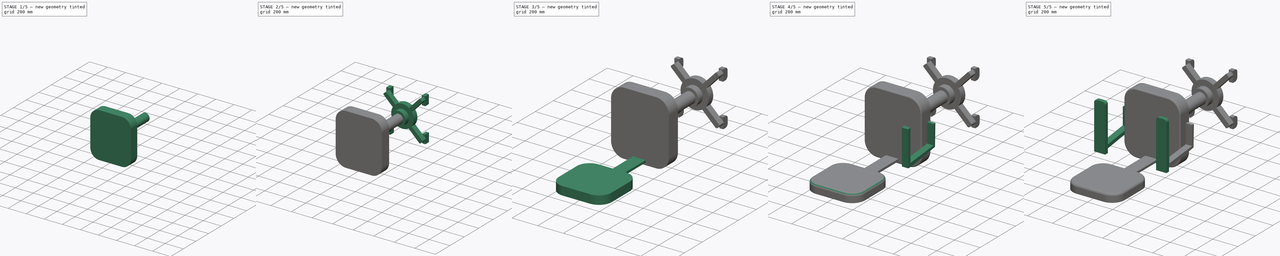
[diagram: build sequence overview — one tinted view per stage of 5, left to right]
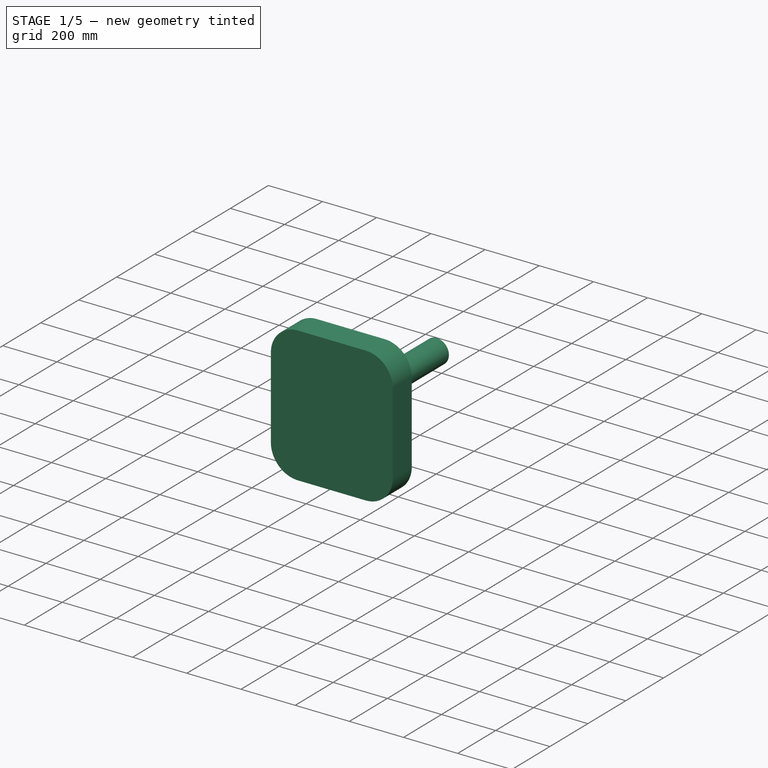
[diagram: stage 1 of 5 — iso view after this stage's code; geometry added in this stage tinted green]
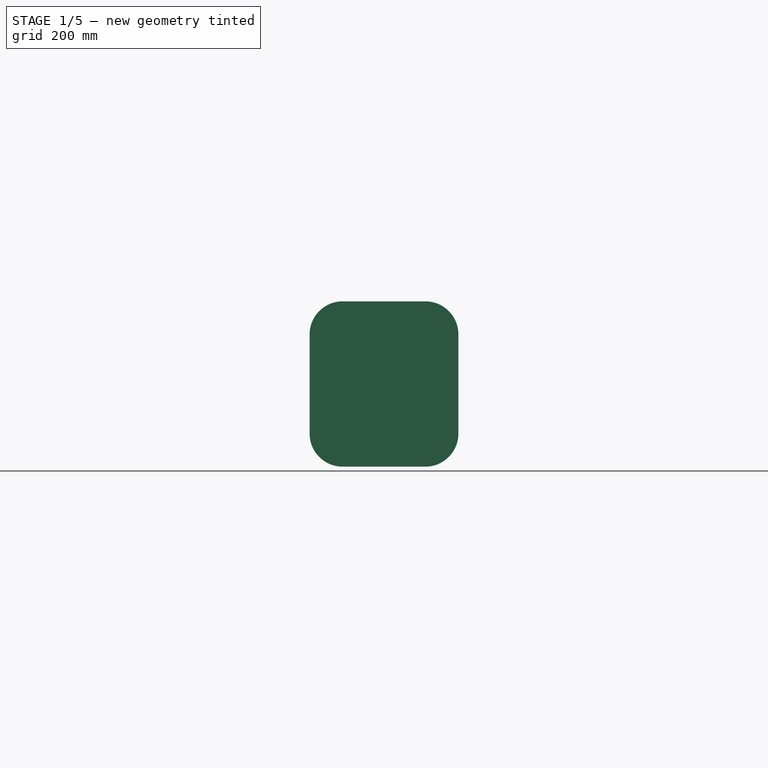
[diagram: stage 1 of 5 — front view after this stage's code; geometry added in this stage tinted green]
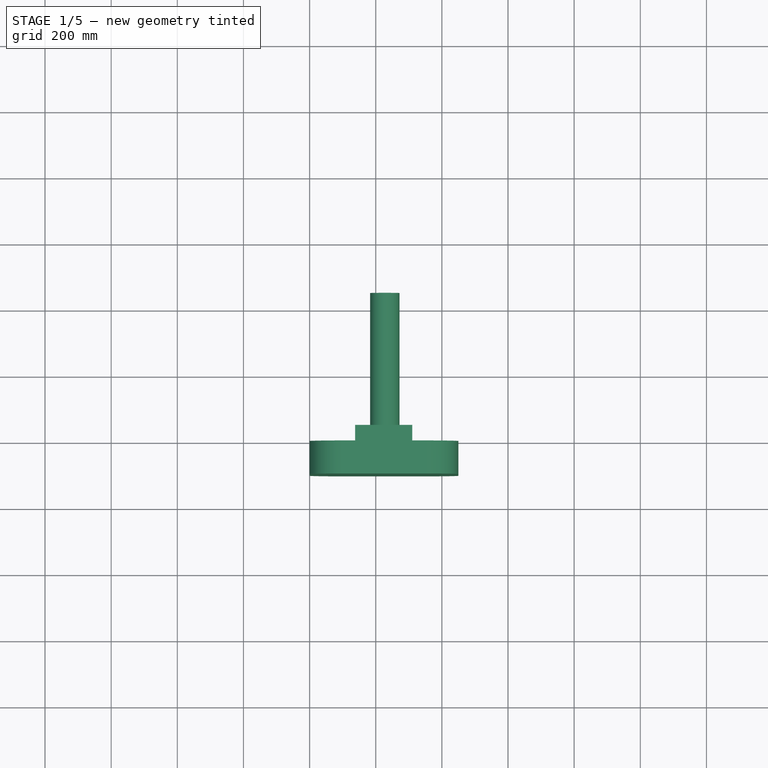
[diagram: stage 1 of 5 — top view after this stage's code; geometry added in this stage tinted green]
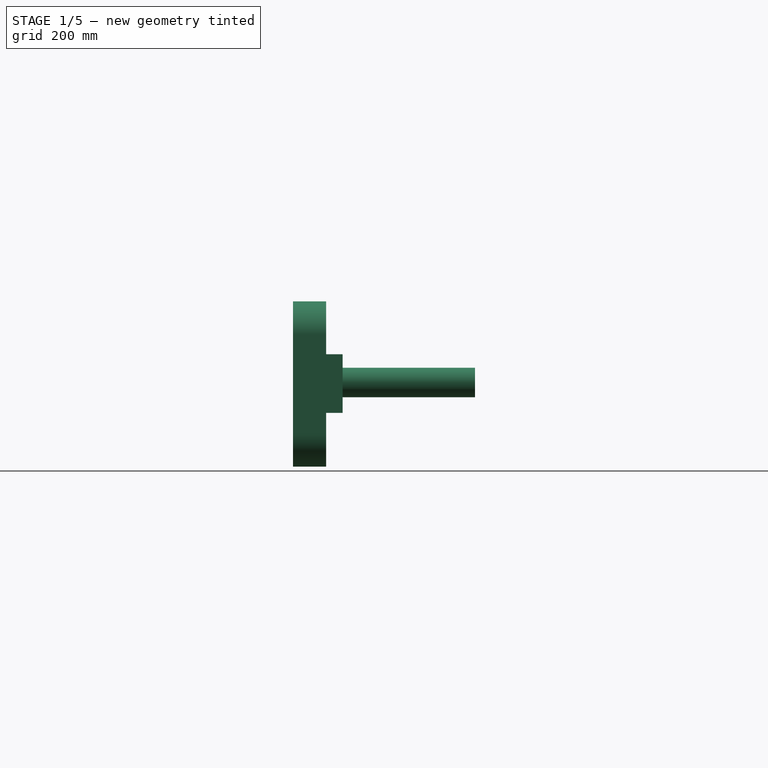
[diagram: stage 1 of 5 — right view after this stage's code; geometry added in this stage tinted green]
FCSTD DOCUMENT  (FreeCAD 1.0R39319 (Git))
Label: office-chair
License: All rights reserved
LicenseURL: https://en.wikipedia.org/wiki/All_rights_reserved
objects: Sketcher::SketchObject×12, PartDesign::Pad×12, PartDesign::Fillet×6, PartDesign::Body×1
note: 79 computed .brp shape members not serialized (recipe doc carries the construction recipe); baked Part::Feature solids carry a one-line shape summary decoded from their .brp

FEATURE [Sketcher::SketchObject] Sketch
  ArcFitTolerance = 1e-06
  AttachmentSupport = -> [XZ_Plane]
  FullyConstrained = true
  MakeInternals = false
  MapMode = 5
  Placement = pos=(0,0,0) rot=(1,0,0;1.5708rad)
  sketch-geometry (4):
    g0: LineSegment StartX=0 StartY=0 StartZ=0 EndX=450 EndY=0 EndZ=0
    g1: LineSegment StartX=450 StartY=0 StartZ=0 EndX=450 EndY=500 EndZ=0
    g2: LineSegment StartX=450 StartY=500 StartZ=0 EndX=0 EndY=500 EndZ=0
    g3: LineSegment StartX=0 StartY=500 StartZ=0 EndX=0 EndY=0 EndZ=0
  constraints (11):
    c: Coincident(g0,g1)
    c: Coincident(g1,g2)
    c: Coincident(g2,g3)
    c: Coincident(g3,g0)
    c: Horizontal(g0)
    c: Horizontal(g2)
    c: Vertical(g1)
    c: Vertical(g3)
    c: Distance(g1,g3) = 450
    c: Distance(g0,g2) = 500
    c: Coincident(g0,g-1)
FEATURE [PartDesign::Pad] Pad
  Direction = (0,-1,2e-16)
  Length = 100
  Length2 = 10
  Placement = pos=(0,0,0) rot=(1,0,0;1.5708rad)
  Profile = -> Sketch
  ReferenceAxis = -> Sketch [N_Axis]
  Refine = true
  Suppressed = false
  Type = 0
FEATURE [PartDesign::Fillet] Fillet
  Base = -> Pad [Edge8,Edge1,Edge2,Edge5]
  BaseFeature = -> Pad
  Placement = pos=(0,0,0) rot=(1,0,0;1.5708rad)
  Radius = 100
  Refine = true
  SupportTransform = false
  Suppressed = false
  UseAllEdges = false
FEATURE [Sketcher::SketchObject] Sketch001
  ArcFitTolerance = 1e-06
  AttachmentSupport = -> [Fillet]
  FullyConstrained = false
  MakeInternals = false
  MapMode = 5
  Placement = pos=(0,5.55e-14,0) rot=(-1,0,0;1.5708rad)
  sketch-geometry (4):
    g0: LineSegment StartX=137.68 StartY=-162.539 StartZ=0 EndX=137.68 EndY=-339.873 EndZ=0
    g1: LineSegment StartX=137.68 StartY=-339.873 StartZ=0 EndX=310.525 EndY=-339.873 EndZ=0
    g2: LineSegment StartX=310.525 StartY=-339.873 StartZ=0 EndX=310.525 EndY=-162.539 EndZ=0
    g3: LineSegment StartX=310.525 StartY=-162.539 StartZ=0 EndX=137.68 EndY=-162.539 EndZ=0
  constraints (8):
    c: Coincident(g0,g1)
    c: Coincident(g1,g2)
    c: Coincident(g2,g3)
    c: Coincident(g3,g0)
    c: Vertical(g0)
    c: Vertical(g2)
    c: Horizontal(g1)
    c: Horizontal(g3)
FEATURE [PartDesign::Pad] Pad001
  BaseFeature = -> Fillet
  Direction = (0,1,2e-16)
  Length = 50
  Length2 = 10
  Placement = pos=(0,0,0) rot=(1,0,0;1.5708rad)
  Profile = -> Sketch001
  ReferenceAxis = -> Sketch001 [N_Axis]
  Refine = true
  Suppressed = false
  Type = 0
FEATURE [Sketcher::SketchObject] Sketch002
  ArcFitTolerance = 1e-06
  AttachmentSupport = -> [Pad001]
  FullyConstrained = false
  MakeInternals = false
  MapMode = 5
  Placement = pos=(0,50,0) rot=(-1,0,0;1.5708rad)
  sketch-geometry (1):
    g0: Circle CenterX=227.47 CenterY=-254.573 CenterZ=0 NormalX=0 NormalY=0 NormalZ=1 AngleXU=0 Radius=44.5567
FEATURE [PartDesign::Pad] Pad002
  BaseFeature = -> Pad001
  Direction = (0,1,2e-16)
  Length = 400
  Length2 = 10
  Placement = pos=(0,0,0) rot=(1,0,0;1.5708rad)
  Profile = -> Sketch002
  ReferenceAxis = -> Sketch002 [N_Axis]
  Refine = true
  Suppressed = false
  Type = 0
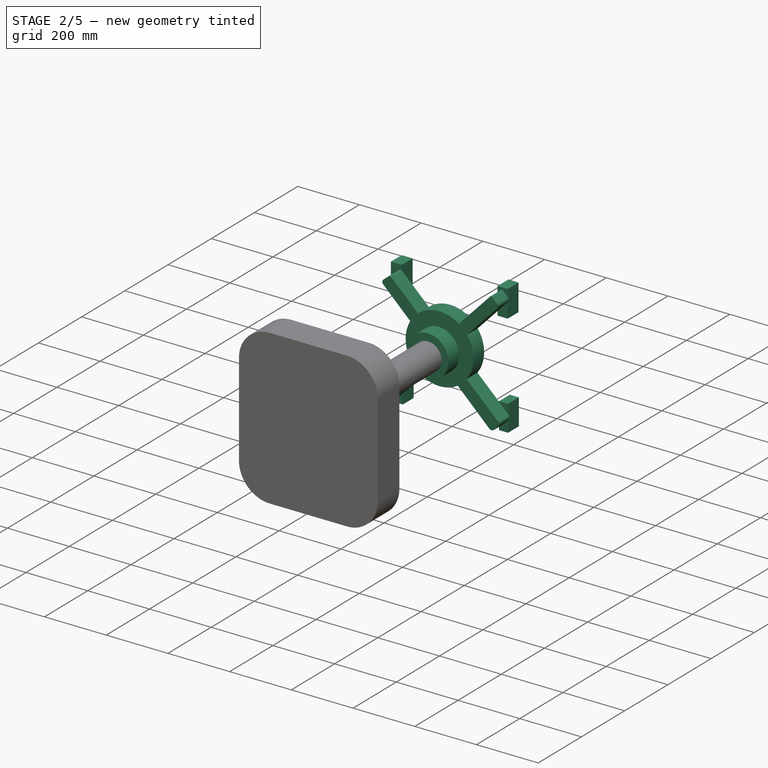
[diagram: stage 2 of 5 — iso view after this stage's code; geometry added in this stage tinted green]
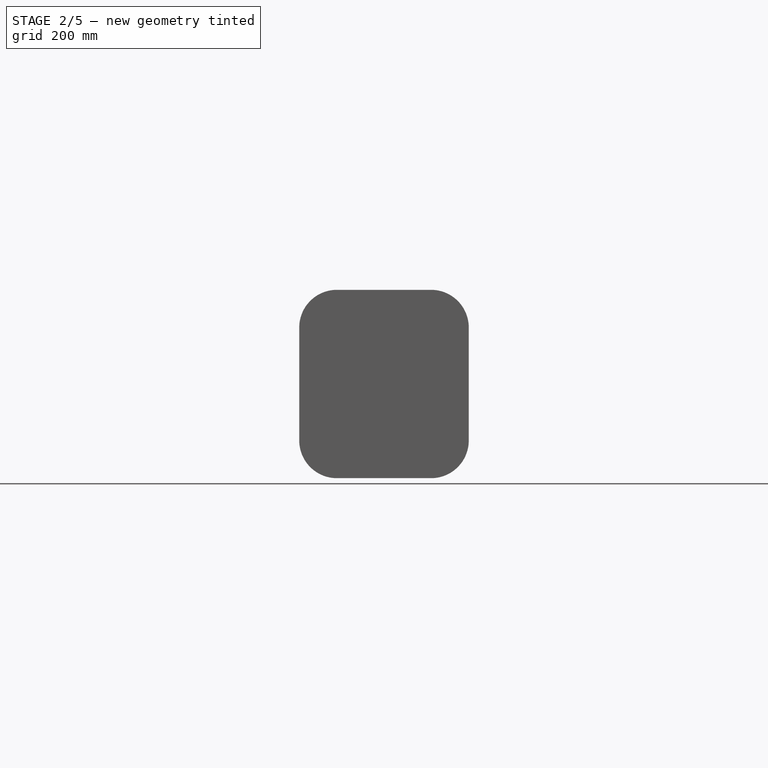
[diagram: stage 2 of 5 — front view after this stage's code; geometry added in this stage tinted green]
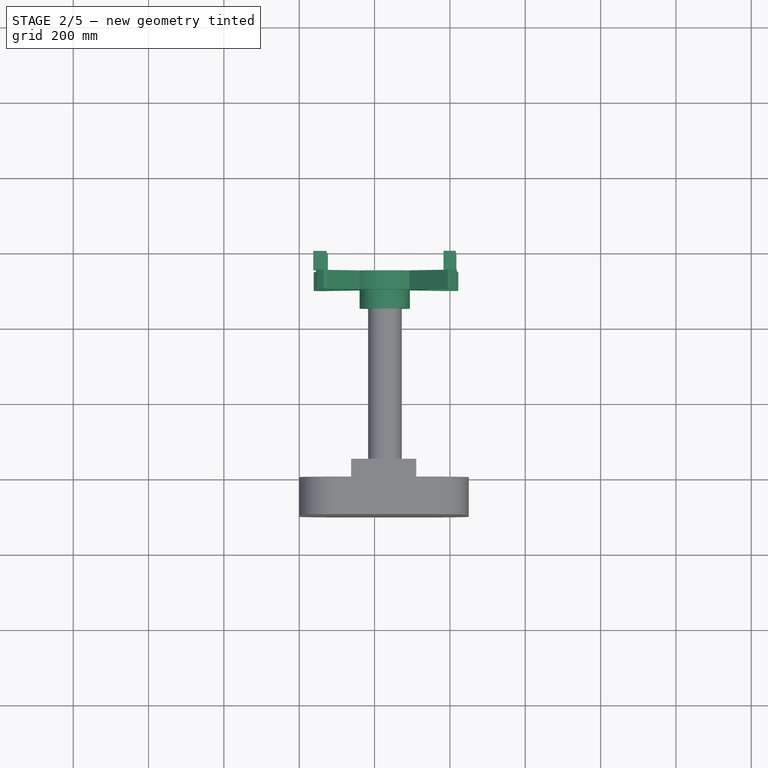
[diagram: stage 2 of 5 — top view after this stage's code; geometry added in this stage tinted green]
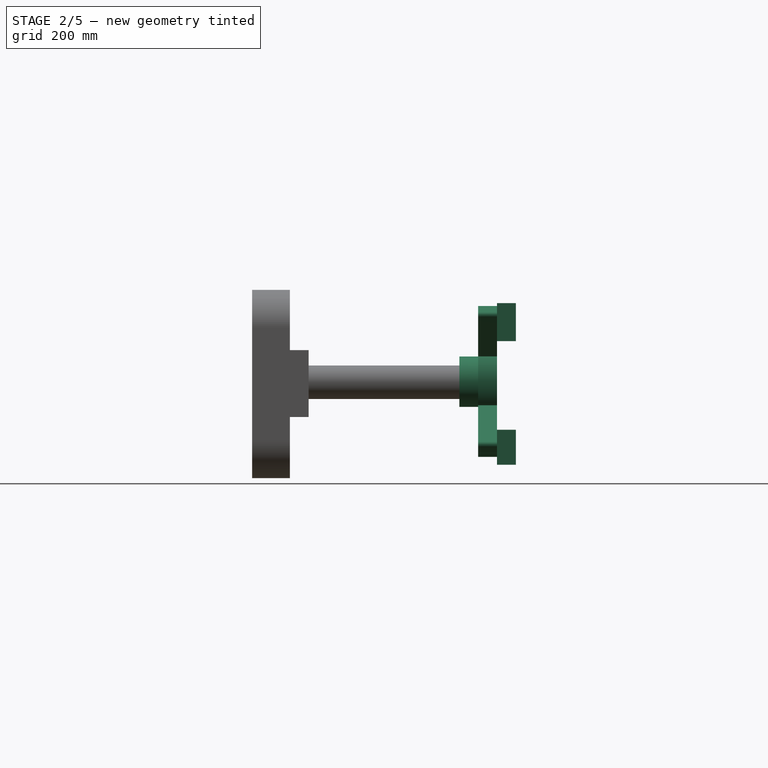
[diagram: stage 2 of 5 — right view after this stage's code; geometry added in this stage tinted green]
FEATURE [Sketcher::SketchObject] Sketch003
  ArcFitTolerance = 1e-06
  AttachmentSupport = -> [Pad002]
  FullyConstrained = false
  MakeInternals = false
  MapMode = 5
  Placement = pos=(0,450,0) rot=(-1,0,0;1.5708rad)
  sketch-geometry (1):
    g0: Circle CenterX=227.002 CenterY=-256.114 CenterZ=0 NormalX=0 NormalY=0 NormalZ=1 AngleXU=0 Radius=66.7408
FEATURE [PartDesign::Pad] Pad003
  BaseFeature = -> Pad002
  Direction = (0,1,2e-16)
  Length = 50
  Length2 = 10
  Placement = pos=(0,0,0) rot=(1,0,0;1.5708rad)
  Profile = -> Sketch003
  ReferenceAxis = -> Sketch003 [N_Axis]
  Refine = true
  Suppressed = false
  Type = 0
FEATURE [Sketcher::SketchObject] Sketch004
  ArcFitTolerance = 1e-06
  AttachmentSupport = -> [Pad003]
  FullyConstrained = false
  MakeInternals = false
  MapMode = 5
  Placement = pos=(0,500,0) rot=(-1,0,0;1.5708rad)
  sketch-geometry (36):
    g0: Circle CenterX=229.716 CenterY=-259.063 CenterZ=0 NormalX=0 NormalY=0 NormalZ=1 AngleXU=0 Radius=109.625
    g1: LineSegment StartX=41.4279 StartY=-84.1603 StartZ=0 EndX=181.537 EndY=-231.918 EndZ=0
    g2: LineSegment StartX=400.729 StartY=-455.528 StartZ=0 EndX=415.713 EndY=-441.061 EndZ=0
    g3: LineSegment StartX=416.04 StartY=-426.286 StartZ=0 EndX=267.975 EndY=-270.056 EndZ=0
    g4: LineSegment StartX=55.9414 StartY=-58.3666 StartZ=0 EndX=42.9376 EndY=-67.8054 EndZ=0
    g5: LineSegment StartX=47.1419 StartY=-399.036 StartZ=0 EndX=180.652 EndY=-270.571 EndZ=0
    g6: LineSegment StartX=47.4551 StartY=-412.273 StartZ=0 EndX=62.9285 EndY=-425.813 EndZ=0
    g7: LineSegment StartX=74.8355 StartY=-425.555 StartZ=0 EndX=209.494 EndY=-297.017 EndZ=0
    g8: LineSegment StartX=419.078 StartY=-81.5976 StartZ=0 EndX=406.837 EndY=-68.9623 EndZ=0
    g9: LineSegment StartX=244.832 StartY=-209.478 StartZ=0 EndX=390.558 EndY=-68.6927 EndZ=0
    g10: LineSegment StartX=244.083 StartY=-297.879 StartZ=0 EndX=393.419 EndY=-455.367 EndZ=0
    g11: LineSegment StartX=268.715 StartY=-240.488 StartZ=0 EndX=418.772 EndY=-97.252 EndZ=0
    g12: LineSegment StartX=212.371 StartY=-208.91 StartZ=0 EndX=68.1099 EndY=-59.4358 EndZ=0
    g13: ArcOfCircle CenterX=228.885 CenterY=-192.971 CenterZ=0 NormalX=0 NormalY=0 NormalZ=1 AngleXU=0 Radius=22.9511 StartAngle=3.90925 EndAngle=5.48054
    g14: ArcOfCircle CenterX=161.626 CenterY=-250.799 CenterZ=0 NormalX=0 NormalY=0 NormalZ=1 AngleXU=0 Radius=27.4391 StartAngle=5.47853 EndAngle=7.04202
    g15: GeomPoint [constr] X=200.28 Y=-251.684 Z=0
    g16: ArcOfCircle CenterX=226.359 CenterY=-314.686 CenterZ=0 NormalX=0 NormalY=0 NormalZ=1 AngleXU=0 Radius=24.4257 StartAngle=0.758834 EndAngle=2.33294
    g17: GeomPoint [constr] X=227.221 Y=-280.096 Z=0
    g18: ArcOfCircle CenterX=283.183 CenterY=-255.644 CenterZ=0 NormalX=0 NormalY=0 NormalZ=1 AngleXU=0 Radius=20.9524 StartAngle=2.33294 EndAngle=3.90017
    g19: GeomPoint [constr] X=253.614 Y=-254.903 Z=0
    g20: ArcOfCircle CenterX=49.3537 CenterY=-76.6448 CenterZ=0 NormalX=0 NormalY=0 NormalZ=1 AngleXU=0 Radius=10.9225 StartAngle=2.19866 EndAngle=3.90043
    g21: GeomPoint [constr] X=32.8575 Y=-75.122 Z=0
    g22: ArcOfCircle CenterX=61.4106 CenterY=-65.9015 CenterZ=0 NormalX=0 NormalY=0 NormalZ=1 AngleXU=0 Radius=9.31055 StartAngle=0.767653 EndAngle=2.19866
    g23: GeomPoint [constr] X=62.4903 Y=-53.6131 Z=0
    g24: ArcOfCircle CenterX=398.563 CenterY=-76.9785 CenterZ=0 NormalX=0 NormalY=0 NormalZ=1 AngleXU=0 Radius=11.5209 StartAngle=0.769531 EndAngle=2.33895
    g25: GeomPoint [constr] X=398.832 Y=-60.6989 Z=0
    g26: ArcOfCircle CenterX=411.155 CenterY=-89.2728 CenterZ=0 NormalX=0 NormalY=0 NormalZ=1 AngleXU=0 Radius=11.0308 StartAngle=5.47454 EndAngle=7.05272
    g27: GeomPoint [constr] X=426.81 Y=-89.579 Z=0
    g28: ArcOfCircle CenterX=397.154 CenterY=-451.825 CenterZ=0 NormalX=0 NormalY=0 NormalZ=1 AngleXU=0 Radius=5.14718 StartAngle=3.90043 EndAngle=5.48025
    g29: GeomPoint [constr] X=396.993 Y=-459.136 Z=0
    g30: ArcOfCircle CenterX=408.42 CenterY=-433.508 CenterZ=0 NormalX=0 NormalY=0 NormalZ=1 AngleXU=0 Radius=10.4991 StartAngle=5.48025 EndAngle=7.04176
    g31: GeomPoint [constr] X=423.196 Y=-433.836 Z=0
    g32: ArcOfCircle CenterX=53.3722 CenterY=-405.511 CenterZ=0 NormalX=0 NormalY=0 NormalZ=1 AngleXU=0 Radius=8.98563 StartAngle=2.33694 EndAngle=3.99356
    g33: GeomPoint [constr] X=40.0859 Y=-405.825 Z=0
    g34: ArcOfCircle CenterX=68.7409 CenterY=-419.17 CenterZ=0 NormalX=0 NormalY=0 NormalZ=1 AngleXU=0 Radius=8.82667 StartAngle=3.99356 EndAngle=5.47454
    g35: GeomPoint [constr] X=68.9999 Y=-431.125 Z=0
  constraints (46):
    c: Tangent(g12,g13) = 1.5708
    c: Tangent(g9,g13) = -1.5708
    c: PointOnObject(g15,g1)
    c: PointOnObject(g15,g5)
    c: Tangent(g1,g14) = 1.5708
    c: Tangent(g5,g14) = -1.5708
    c: PointOnObject(g17,g7)
    c: PointOnObject(g17,g10)
    c: Tangent(g7,g16) = 1.5708
    c: Tangent(g10,g16) = 1.5708
    c: PointOnObject(g19,g3)
    c: PointOnObject(g19,g11)
    c: Tangent(g3,g18) = 1.5708
    c: Tangent(g11,g18) = 1.5708
    c: PointOnObject(g21,g4)
    c: PointOnObject(g21,g1)
    c: Tangent(g4,g20) = -1.5708
    c: Tangent(g1,g20) = -1.5708
    c: PointOnObject(g23,g4)
    c: PointOnObject(g23,g12)
    c: Tangent(g4,g22) = -1.5708
    c: Tangent(g12,g22) = -1.5708
    c: PointOnObject(g25,g9)
    c: PointOnObject(g25,g8)
    c: Tangent(g9,g24) = 1.5708
    c: Tangent(g8,g24) = -1.5708
    c: PointOnObject(g27,g8)
    c: PointOnObject(g27,g11)
    c: Tangent(g8,g26) = -1.5708
    c: Tangent(g11,g26) = -1.5708
    c: PointOnObject(g29,g2)
    c: PointOnObject(g29,g10)
    c: Tangent(g2,g28) = -1.5708
    c: Tangent(g10,g28) = -1.5708
    c: PointOnObject(g31,g2)
    c: PointOnObject(g31,g3)
    c: Tangent(g2,g30) = -1.5708
    c: Tangent(g3,g30) = -1.5708
    c: PointOnObject(g33,g6)
    c: PointOnObject(g33,g5)
    c: Tangent(g6,g32) = -1.5708
    c: Tangent(g5,g32) = 1.5708
    c: PointOnObject(g35,g6)
    c: PointOnObject(g35,g7)
    c: Tangent(g6,g34) = -1.5708
    c: Tangent(g7,g34) = -1.5708
FEATURE [PartDesign::Pad] Pad004
  BaseFeature = -> Pad003
  Direction = (0,1,2e-16)
  Length = 50
  Length2 = 10
  Placement = pos=(0,0,0) rot=(1,0,0;1.5708rad)
  Profile = -> Sketch004
  ReferenceAxis = -> Sketch004 [N_Axis]
  Refine = true
  Suppressed = false
  Type = 0
FEATURE [Sketcher::SketchObject] Sketch005
  ArcFitTolerance = 1e-06
  AttachmentSupport = -> [Pad004]
  FullyConstrained = false
  MakeInternals = false
  MapMode = 5
  Placement = pos=(0,550,1.221e-13) rot=(-1,0,0;1.5708rad)
  sketch-geometry (16):
    g0: LineSegment StartX=44.3302 StartY=-122.636 StartZ=0 EndX=76.0759 EndY=-122.636 EndZ=0
    g1: LineSegment StartX=76.0759 StartY=-122.636 StartZ=0 EndX=76.0759 EndY=-35.6288 EndZ=0
    g2: LineSegment StartX=76.0759 StartY=-35.6288 StartZ=0 EndX=44.3302 EndY=-35.6288 EndZ=0
    g3: LineSegment StartX=44.3302 StartY=-35.6288 StartZ=0 EndX=44.3302 EndY=-122.636 EndZ=0
    g4: LineSegment StartX=387.654 StartY=-128.514 StartZ=0 EndX=417.049 EndY=-128.514 EndZ=0
    g5: LineSegment StartX=417.049 StartY=-128.514 StartZ=0 EndX=417.049 EndY=-43.8591 EndZ=0
    g6: LineSegment StartX=417.049 StartY=-43.8591 StartZ=0 EndX=387.654 EndY=-43.8591 EndZ=0
    g7: LineSegment StartX=387.654 StartY=-43.8591 StartZ=0 EndX=387.654 EndY=-128.514 EndZ=0
    g8: LineSegment StartX=37.2756 StartY=-363.668 StartZ=0 EndX=37.2756 EndY=-443.62 EndZ=0
    g9: LineSegment StartX=37.2756 StartY=-443.62 StartZ=0 EndX=72.5486 EndY=-443.62 EndZ=0
    g10: LineSegment StartX=72.5486 StartY=-443.62 StartZ=0 EndX=72.5486 EndY=-363.668 EndZ=0
    g11: LineSegment StartX=72.5486 StartY=-363.668 StartZ=0 EndX=37.2756 EndY=-363.668 EndZ=0
    g12: LineSegment StartX=382.951 StartY=-464.784 StartZ=0 EndX=415.873 EndY=-464.784 EndZ=0
    g13: LineSegment StartX=415.873 StartY=-464.784 StartZ=0 EndX=415.873 EndY=-377.777 EndZ=0
    g14: LineSegment StartX=415.873 StartY=-377.777 StartZ=0 EndX=382.951 EndY=-377.777 EndZ=0
    g15: LineSegment StartX=382.951 StartY=-377.777 StartZ=0 EndX=382.951 EndY=-464.784 EndZ=0
  constraints (32):
    c: Coincident(g0,g1)
    c: Coincident(g1,g2)
    c: Coincident(g2,g3)
    c: Coincident(g3,g0)
    c: Horizontal(g0)
    c: Horizontal(g2)
    c: Vertical(g1)
    c: Vertical(g3)
    c: Coincident(g4,g5)
    c: Coincident(g5,g6)
    c: Coincident(g6,g7)
    c: Coincident(g7,g4)
    c: Horizontal(g4)
    c: Horizontal(g6)
    c: Vertical(g5)
    c: Vertical(g7)
    c: Coincident(g8,g9)
    c: Coincident(g9,g10)
    c: Coincident(g10,g11)
    c: Coincident(g11,g8)
    c: Vertical(g8)
    c: Vertical(g10)
    c: Horizontal(g9)
    c: Horizontal(g11)
    c: Coincident(g12,g13)
    c: Coincident(g13,g14)
    c: Coincident(g14,g15)
    c: Coincident(g15,g12)
    c: Horizontal(g12)
    c: Horizontal(g14)
    c: Vertical(g13)
    c: Vertical(g15)
FEATURE [PartDesign::Pad] Pad005
  BaseFeature = -> Pad004
  Direction = (0,1,2e-16)
  Length = 50
  Length2 = 10
  Placement = pos=(0,0,0) rot=(1,0,0;1.5708rad)
  Profile = -> Sketch005
  ReferenceAxis = -> Sketch005 [N_Axis]
  Refine = true
  Suppressed = false
  Type = 0
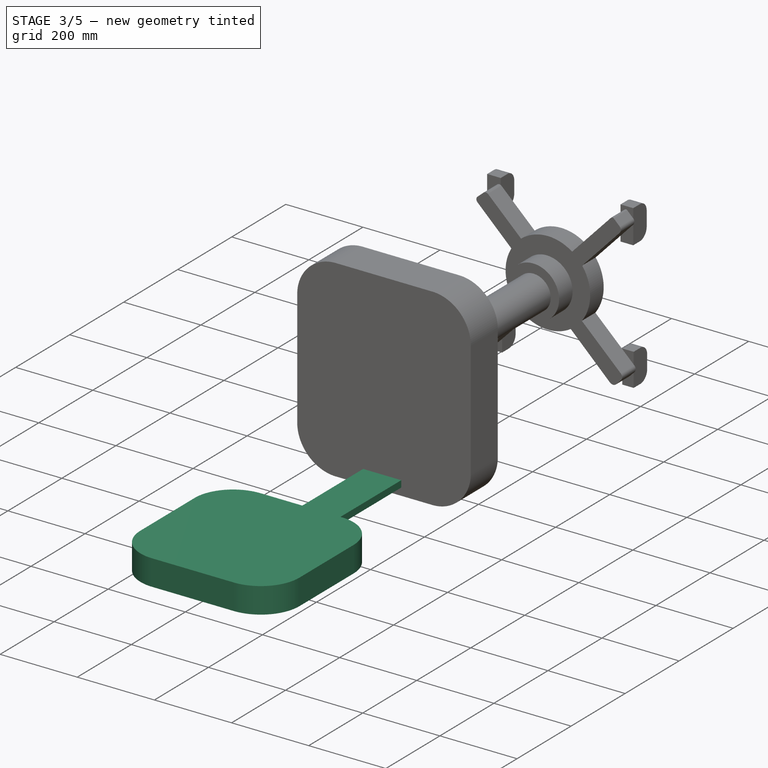
[diagram: stage 3 of 5 — iso view after this stage's code; geometry added in this stage tinted green]
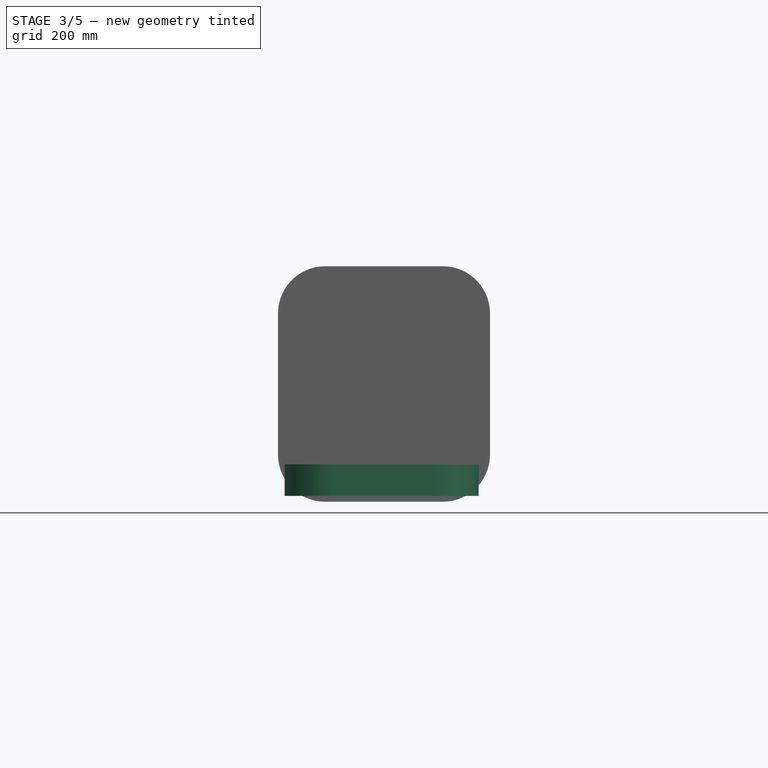
[diagram: stage 3 of 5 — front view after this stage's code; geometry added in this stage tinted green]
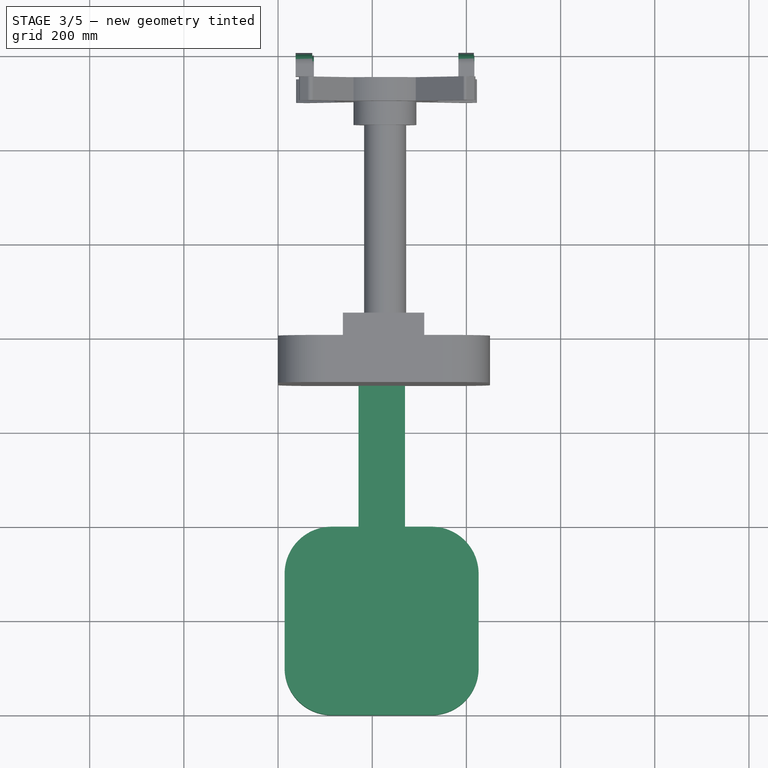
[diagram: stage 3 of 5 — top view after this stage's code; geometry added in this stage tinted green]
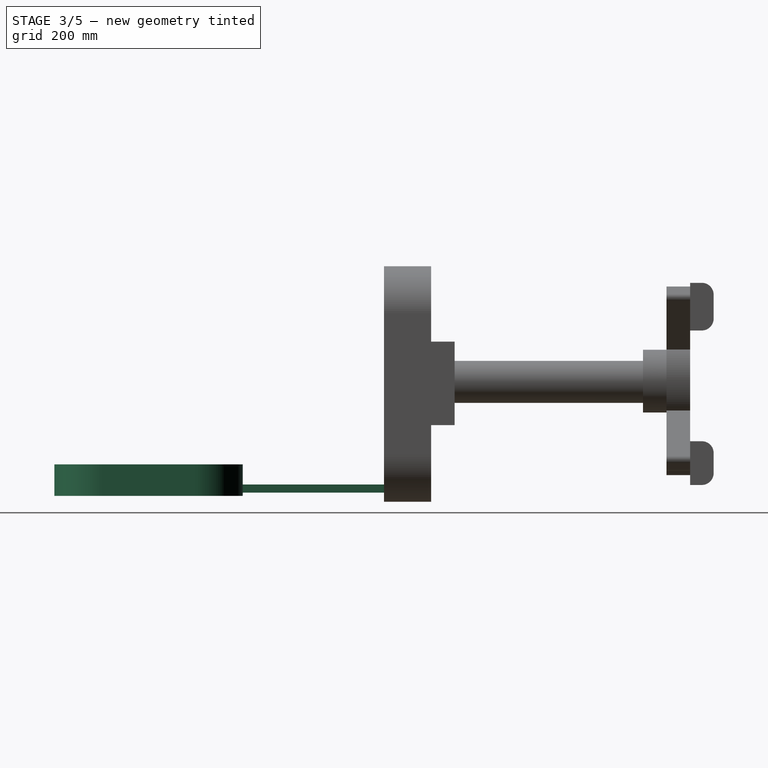
[diagram: stage 3 of 5 — right view after this stage's code; geometry added in this stage tinted green]
FEATURE [PartDesign::Fillet] Fillet001
  Base = -> Pad005 [Edge160,Edge158,Edge155,Edge153,Edge150,Edge148,Edge162,Edge131]
  BaseFeature = -> Pad005
  Placement = pos=(0,0,0) rot=(1,0,0;1.5708rad)
  Radius = 25
  Refine = true
  SupportTransform = false
  Suppressed = false
  UseAllEdges = false
FEATURE [Sketcher::SketchObject] Sketch006
  ArcFitTolerance = 1e-06
  AttachmentSupport = -> [Fillet001]
  FullyConstrained = false
  MakeInternals = false
  MapMode = 5
  Placement = pos=(0,-100,0) rot=(1,0,0;1.5708rad)
  sketch-geometry (4):
    g0: LineSegment StartX=170.954 StartY=19.3576 StartZ=0 EndX=269.706 EndY=19.3576 EndZ=0
    g1: LineSegment StartX=269.706 StartY=19.3576 StartZ=0 EndX=269.706 EndY=36.5766 EndZ=0
    g2: LineSegment StartX=269.706 StartY=36.5766 StartZ=0 EndX=170.954 EndY=36.5766 EndZ=0
    g3: LineSegment StartX=170.954 StartY=36.5766 StartZ=0 EndX=170.954 EndY=19.3576 EndZ=0
  constraints (8):
    c: Coincident(g0,g1)
    c: Coincident(g1,g2)
    c: Coincident(g2,g3)
    c: Coincident(g3,g0)
    c: Horizontal(g0)
    c: Horizontal(g2)
    c: Vertical(g1)
    c: Vertical(g3)
FEATURE [PartDesign::Pad] Pad006
  BaseFeature = -> Fillet001
  Direction = (0,-1,2e-16)
  Length = 300
  Length2 = 10
  Placement = pos=(0,0,0) rot=(1,0,0;1.5708rad)
  Profile = -> Sketch006
  ReferenceAxis = -> Sketch006 [N_Axis]
  Refine = true
  Suppressed = false
  Type = 0
FEATURE [Sketcher::SketchObject] Sketch007
  ArcFitTolerance = 1e-06
  AttachmentSupport = -> [Pad006]
  FullyConstrained = false
  MakeInternals = false
  MapMode = 5
  Placement = pos=(0,-400,3.301e-13) rot=(1,0,0;1.5708rad)
  sketch-geometry (4):
    g0: LineSegment StartX=13.9236 StartY=79.2408 StartZ=0 EndX=13.9236 EndY=12.4122 EndZ=0
    g1: LineSegment StartX=13.9236 StartY=12.4122 StartZ=0 EndX=425.914 EndY=12.4122 EndZ=0
    g2: LineSegment StartX=425.914 StartY=12.4122 StartZ=0 EndX=425.914 EndY=79.2408 EndZ=0
    g3: LineSegment StartX=425.914 StartY=79.2408 StartZ=0 EndX=13.9236 EndY=79.2408 EndZ=0
  constraints (8):
    c: Coincident(g0,g1)
    c: Coincident(g1,g2)
    c: Coincident(g2,g3)
    c: Coincident(g3,g0)
    c: Vertical(g0)
    c: Vertical(g2)
    c: Horizontal(g1)
    c: Horizontal(g3)
FEATURE [PartDesign::Pad] Pad007
  BaseFeature = -> Pad006
  Direction = (0,-1,2e-16)
  Length = 400
  Length2 = 10
  Placement = pos=(0,0,0) rot=(1,0,0;1.5708rad)
  Profile = -> Sketch007
  ReferenceAxis = -> Sketch007 [N_Axis]
  Refine = true
  Suppressed = false
  Type = 0
FEATURE [PartDesign::Fillet] Fillet002
  Base = -> Pad007 [Edge240,Edge237,Edge243,Edge248]
  BaseFeature = -> Pad007
  Placement = pos=(0,0,0) rot=(1,0,0;1.5708rad)
  Radius = 100
  Refine = true
  SupportTransform = false
  Suppressed = false
  UseAllEdges = false
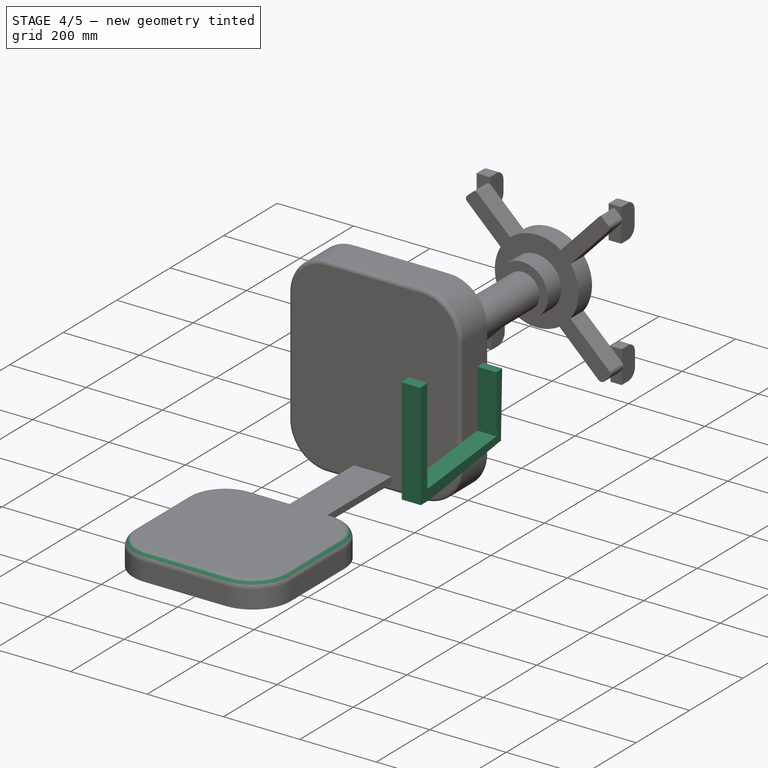
[diagram: stage 4 of 5 — iso view after this stage's code; geometry added in this stage tinted green]
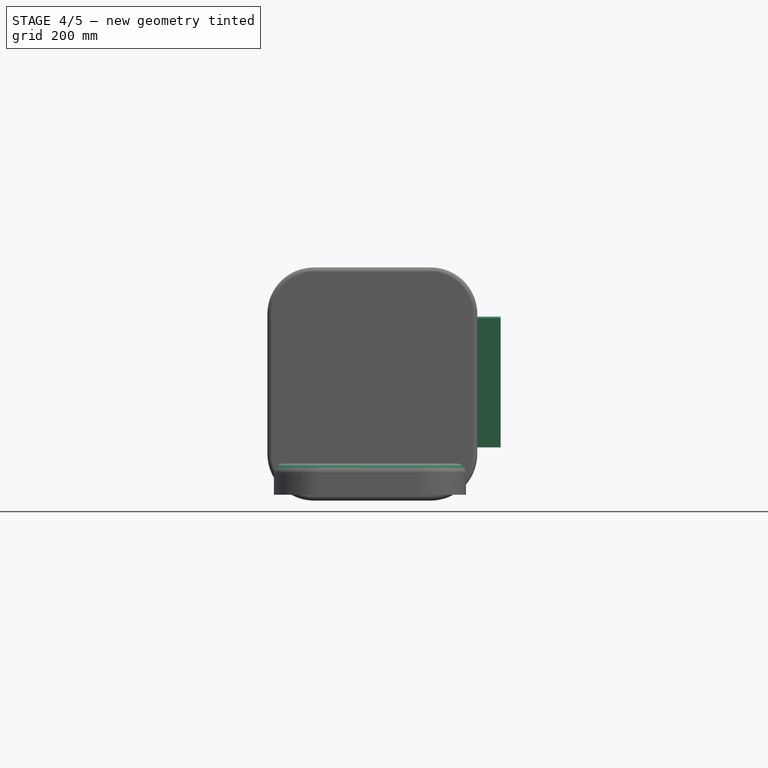
[diagram: stage 4 of 5 — front view after this stage's code; geometry added in this stage tinted green]
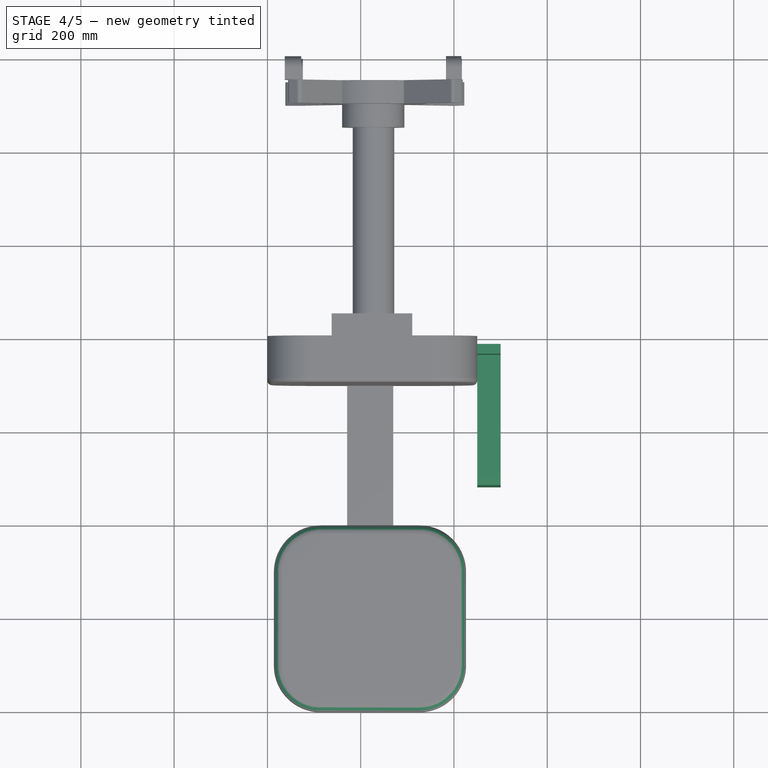
[diagram: stage 4 of 5 — top view after this stage's code; geometry added in this stage tinted green]
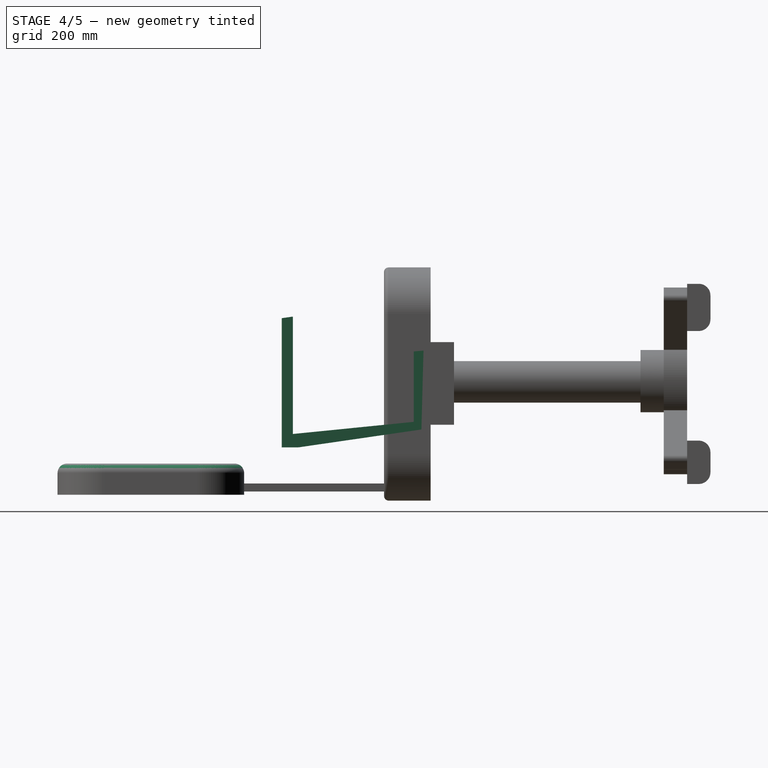
[diagram: stage 4 of 5 — right view after this stage's code; geometry added in this stage tinted green]
FEATURE [PartDesign::Fillet] Fillet003
  Base = -> Fillet002 [Edge11,Edge12,Edge14,Edge15,Edge13,Edge1,Edge10,Edge9]
  BaseFeature = -> Fillet002
  Placement = pos=(0,0,0) rot=(1,0,0;1.5708rad)
  Radius = 20
  Refine = true
  SupportTransform = false
  Suppressed = false
  UseAllEdges = false
FEATURE [PartDesign::Fillet] Fillet004
  Base = -> Fillet003 [Edge53,Edge55,Edge56,Edge54,Edge52,Edge50,Edge51,Edge49]
  BaseFeature = -> Fillet003
  Placement = pos=(0,0,0) rot=(1,0,0;1.5708rad)
  Radius = 10
  Refine = true
  SupportTransform = false
  Suppressed = false
  UseAllEdges = false
FEATURE [Sketcher::SketchObject] Sketch008
  ArcFitTolerance = 1e-06
  AttachmentSupport = -> [Fillet004]
  FullyConstrained = false
  MakeInternals = false
  MapMode = 5
  Placement = pos=(450,0,0) rot=(0.707107,0,0.707107;3.14159rad)
  sketch-geometry (9):
    g0: LineSegment StartX=152.469 StartY=19.7845 StartZ=0 EndX=113.984 EndY=284.511 EndZ=0
    g1: LineSegment StartX=113.984 StartY=284.511 StartZ=0 EndX=113.984 EndY=319.373 EndZ=0
    g2: LineSegment StartX=113.984 StartY=319.373 StartZ=0 EndX=391.117 EndY=319.373 EndZ=0
    g3: LineSegment StartX=391.117 StartY=319.373 StartZ=0 EndX=394.562 EndY=295.405 EndZ=0
    g4: LineSegment StartX=394.562 StartY=295.405 StartZ=0 EndX=142.815 EndY=295.405 EndZ=0
    g5: LineSegment StartX=142.815 StartY=295.405 StartZ=0 EndX=168.812 EndY=36.1272 EndZ=0
    g6: LineSegment StartX=168.812 StartY=36.1272 StartZ=0 EndX=319.87 EndY=36.1272 EndZ=0
    g7: LineSegment StartX=319.87 StartY=36.1272 StartZ=0 EndX=321.618 EndY=15.3044 EndZ=0
    g8: LineSegment StartX=321.618 StartY=15.3044 StartZ=0 EndX=152.469 EndY=19.7845 EndZ=0
  constraints (13):
    c: Coincident(g1,g0)
    c: Vertical(g1)
    c: Coincident(g2,g1)
    c: Horizontal(g2)
    c: Coincident(g3,g2)
    c: Coincident(g4,g3)
    c: Horizontal(g4)
    c: Coincident(g5,g4)
    c: Coincident(g6,g5)
    c: Horizontal(g6)
    c: Coincident(g7,g6)
    c: Coincident(g8,g7)
    c: Coincident(g8,g0)
FEATURE [PartDesign::Pad] Pad008
  BaseFeature = -> Fillet004
  Direction = (1,0,-2e-16)
  Length = 50
  Length2 = 10
  Placement = pos=(0,0,0) rot=(1,0,0;1.5708rad)
  Profile = -> Sketch008
  ReferenceAxis = -> Sketch008 [N_Axis]
  Refine = true
  Suppressed = false
  Type = 0
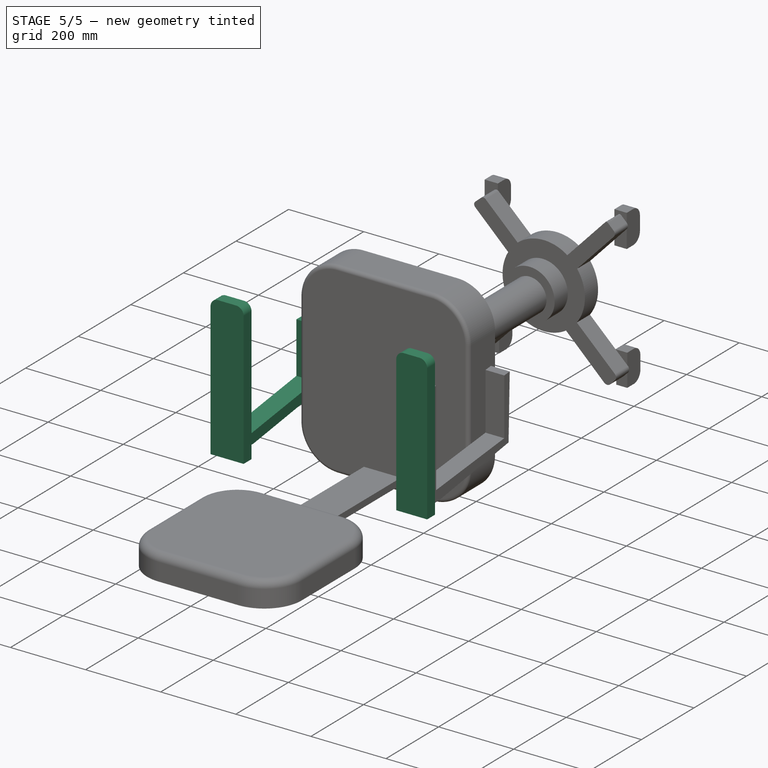
[diagram: stage 5 of 5 — iso view after this stage's code; geometry added in this stage tinted green]
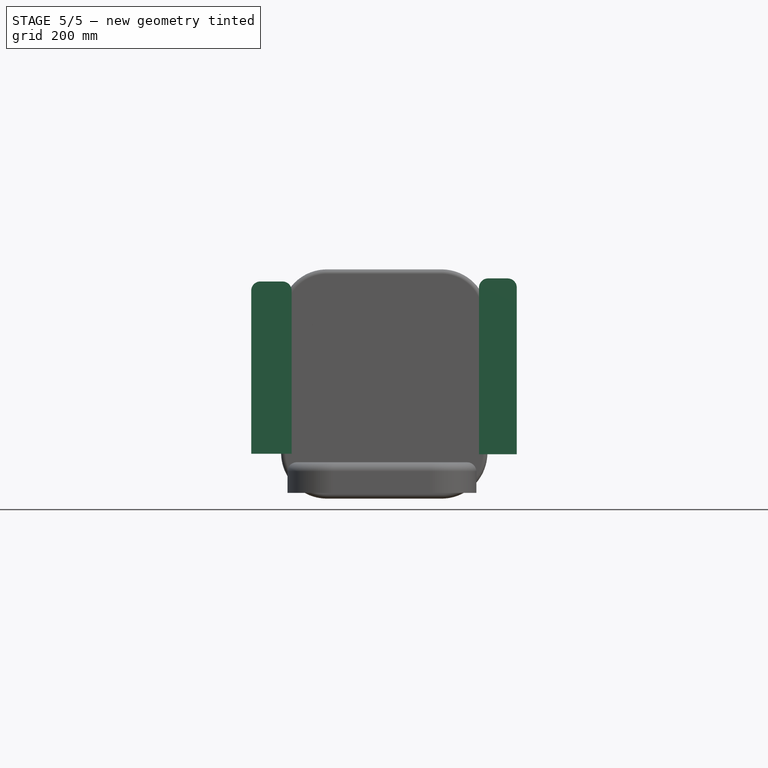
[diagram: stage 5 of 5 — front view after this stage's code; geometry added in this stage tinted green]
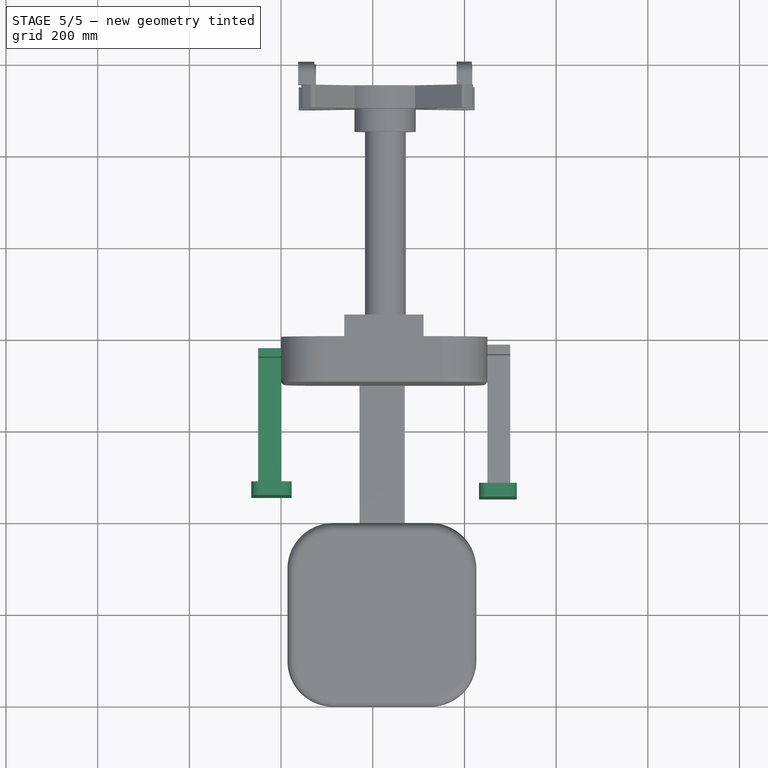
[diagram: stage 5 of 5 — top view after this stage's code; geometry added in this stage tinted green]
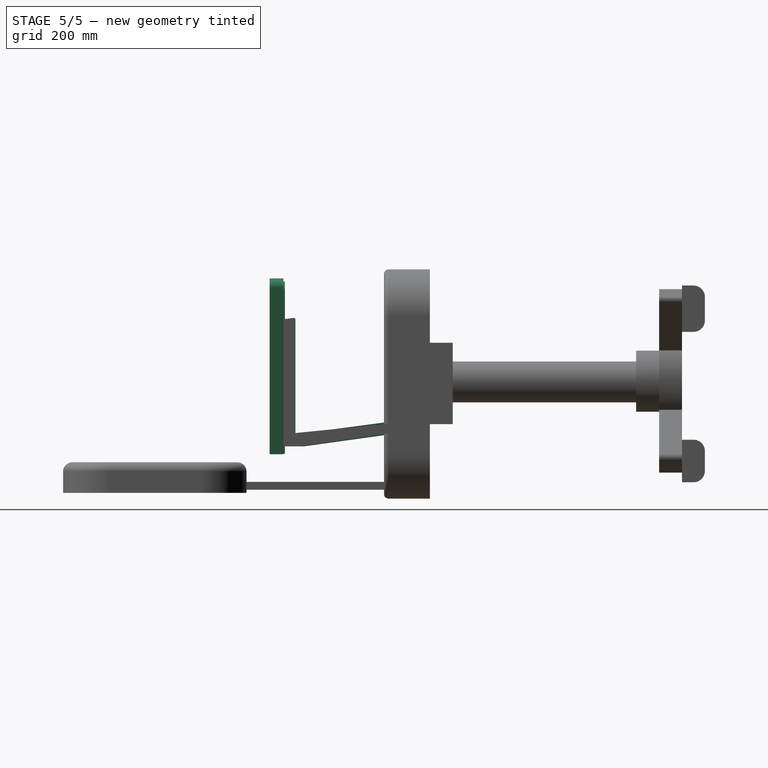
[diagram: stage 5 of 5 — right view after this stage's code; geometry added in this stage tinted green]
FEATURE [Sketcher::SketchObject] Sketch009
  ArcFitTolerance = 1e-06
  AttachmentSupport = -> [Pad008]
  FullyConstrained = false
  MakeInternals = false
  MapMode = 5
  Placement = pos=(0,0,0) rot=(0.707107,0,-0.707107;3.14159rad)
  sketch-geometry (9):
    g0: LineSegment StartX=-309.735 StartY=41.3917 StartZ=0 EndX=-173.794 EndY=41.3917 EndZ=0
    g1: LineSegment StartX=-173.794 StartY=41.3917 StartZ=0 EndX=-140.291 EndY=293.416 EndZ=0
    g2: LineSegment StartX=-140.291 StartY=293.416 StartZ=0 EndX=-392.553 EndY=293.416 EndZ=0
    g3: LineSegment StartX=-392.553 StartY=293.416 StartZ=0 EndX=-391.358 EndY=316.139 EndZ=0
    g4: LineSegment StartX=-391.358 StartY=316.139 StartZ=0 EndX=-113.886 EndY=316.139 EndZ=0
    g5: LineSegment StartX=-113.886 StartY=316.139 StartZ=0 EndX=-113.886 EndY=274.824 EndZ=0
    g6: LineSegment StartX=-113.886 StartY=274.824 StartZ=0 EndX=-149.004 EndY=22.7998 EndZ=0
    g7: LineSegment StartX=-149.004 StartY=22.7998 StartZ=0 EndX=-309.735 EndY=22.7998 EndZ=0
    g8: LineSegment StartX=-309.735 StartY=22.7998 StartZ=0 EndX=-309.735 EndY=41.3917 EndZ=0
  constraints (15):
    c: Horizontal(g0)
    c: Coincident(g1,g0)
    c: Coincident(g2,g1)
    c: Horizontal(g2)
    c: Coincident(g3,g2)
    c: Coincident(g4,g3)
    c: Horizontal(g4)
    c: Coincident(g5,g4)
    c: Vertical(g5)
    c: Coincident(g6,g5)
    c: Coincident(g7,g6)
    c: Horizontal(g7)
    c: Coincident(g8,g7)
    c: Coincident(g8,g0)
    c: Vertical(g8)
FEATURE [PartDesign::Pad] Pad009
  BaseFeature = -> Pad008
  Direction = (-1,0,-2e-16)
  Length = 50
  Length2 = 10
  Placement = pos=(0,0,0) rot=(1,0,0;1.5708rad)
  Profile = -> Sketch009
  ReferenceAxis = -> Sketch009 [N_Axis]
  Refine = true
  Suppressed = false
  Type = 0
FEATURE [Sketcher::SketchObject] Sketch010
  ArcFitTolerance = 1e-06
  AttachmentSupport = -> [Pad009]
  FullyConstrained = false
  MakeInternals = false
  MapMode = 5
  Placement = pos=(0,-319.373,0) rot=(1,0,0;1.5708rad)
  sketch-geometry (8):
    g0: LineSegment StartX=-62.391 StartY=94.2813 StartZ=0 EndX=19.9602 EndY=94.2813 EndZ=0
    g1: LineSegment StartX=19.9602 StartY=94.2813 StartZ=0 EndX=19.9602 EndY=482.876 EndZ=0
    g2: LineSegment StartX=19.9602 StartY=482.876 StartZ=0 EndX=-62.391 EndY=482.876 EndZ=0
    g3: LineSegment StartX=-62.391 StartY=482.876 StartZ=0 EndX=-62.391 EndY=94.2813 EndZ=0
    g4: LineSegment StartX=431.716 StartY=96.8548 StartZ=0 EndX=514.067 EndY=96.8548 EndZ=0
    g5: LineSegment StartX=514.067 StartY=96.8548 StartZ=0 EndX=514.067 EndY=480.303 EndZ=0
    g6: LineSegment StartX=514.067 StartY=480.303 StartZ=0 EndX=431.716 EndY=480.303 EndZ=0
    g7: LineSegment StartX=431.716 StartY=480.303 StartZ=0 EndX=431.716 EndY=96.8548 EndZ=0
  constraints (16):
    c: Coincident(g0,g1)
    c: Coincident(g1,g2)
    c: Coincident(g2,g3)
    c: Coincident(g3,g0)
    c: Horizontal(g0)
    c: Horizontal(g2)
    c: Vertical(g1)
    c: Vertical(g3)
    c: Coincident(g4,g5)
    c: Coincident(g5,g6)
    c: Coincident(g6,g7)
    c: Coincident(g7,g4)
    c: Horizontal(g4)
    c: Horizontal(g6)
    c: Vertical(g5)
    c: Vertical(g7)
FEATURE [PartDesign::Pad] Pad010
  BaseFeature = -> Pad009
  Direction = (0,-1,2e-16)
  Length = 30
  Length2 = 10
  Placement = pos=(0,0,0) rot=(1,0,0;1.5708rad)
  Profile = -> Sketch010
  ReferenceAxis = -> Sketch010 [N_Axis]
  Refine = true
  Suppressed = false
  Type = 0
FEATURE [Sketcher::SketchObject] Sketch011
  ArcFitTolerance = 1e-06
  AttachmentSupport = -> [Pad010]
  FullyConstrained = false
  MakeInternals = false
  MapMode = 5
  Placement = pos=(0,-316.139,0) rot=(1,0,0;1.5708rad)
  sketch-geometry (4):
    g0: LineSegment StartX=-65.0931 StartY=97.8277 StartZ=0 EndX=23.043 EndY=97.8277 EndZ=0
    g1: LineSegment StartX=23.043 StartY=97.8277 StartZ=0 EndX=23.043 EndY=473.654 EndZ=0
    g2: LineSegment StartX=23.043 StartY=473.654 StartZ=0 EndX=-65.0931 EndY=473.654 EndZ=0
    g3: LineSegment StartX=-65.0931 StartY=473.654 StartZ=0 EndX=-65.0931 EndY=97.8277 EndZ=0
  constraints (8):
    c: Coincident(g0,g1)
    c: Coincident(g1,g2)
    c: Coincident(g2,g3)
    c: Coincident(g3,g0)
    c: Horizontal(g0)
    c: Horizontal(g2)
    c: Vertical(g1)
    c: Vertical(g3)
FEATURE [PartDesign::Pad] Pad011
  BaseFeature = -> Pad010
  Direction = (0,-1,2e-16)
  Length = 30
  Length2 = 10
  Placement = pos=(0,0,0) rot=(1,0,0;1.5708rad)
  Profile = -> Sketch011
  ReferenceAxis = -> Sketch011 [N_Axis]
  Refine = true
  Suppressed = false
  Type = 0
FEATURE [PartDesign::Fillet] Fillet005
  Base = -> Pad011 [Edge164,Edge166,Edge156,Edge158]
  BaseFeature = -> Pad011
  Placement = pos=(0,0,0) rot=(1,0,0;1.5708rad)
  Radius = 20
  Refine = true
  SupportTransform = false
  Suppressed = false
  UseAllEdges = false
FEATURE [PartDesign::Body] Body
  AllowCompound = false
  Group = -> [Sketch,Pad,Fillet,Sketch001,Pad001,Sketch002,Pad002,Sketch003,Pad003,Sketch004,Pad004,Sketch005,Pad005,Fillet001,Sketch006,Pad006,Sketch007,Pad007,Fillet002,Fillet003,Fillet004,Sketch008,Pad008,Sketch009,Pad009,Sketch010,Pad010,Sketch011,Pad011,Fillet005]
  Origin = -> Origin
  Tip = -> Fillet005
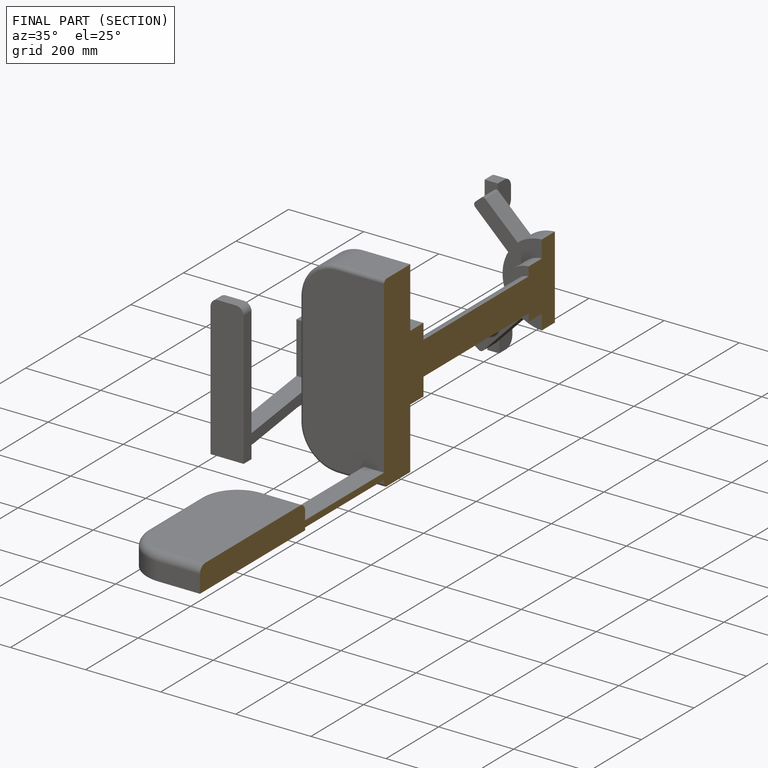
[diagram: finished part — half-section view (interior)]
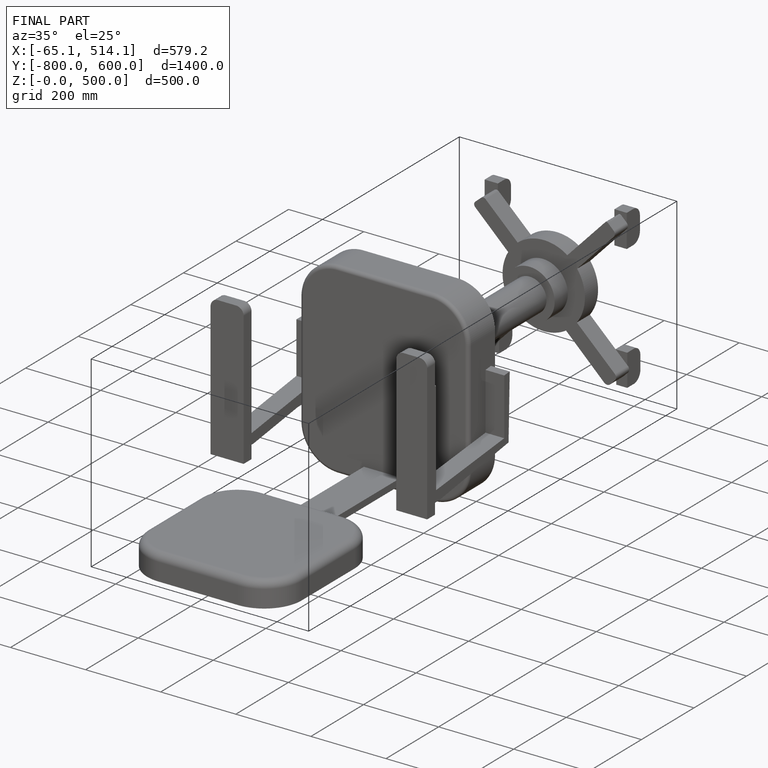
[diagram: finished part — iso view with bounding-box wireframe]
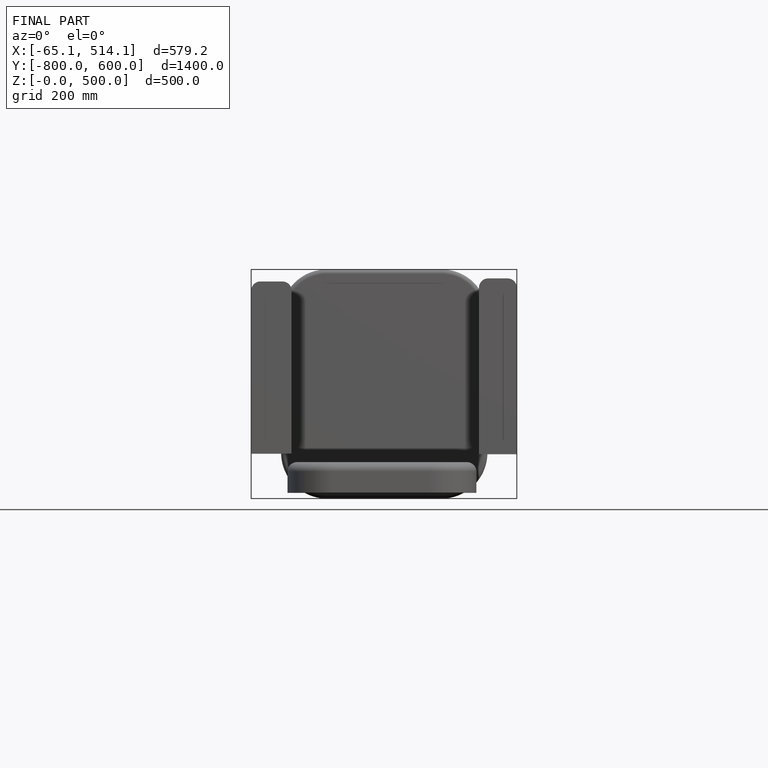
[diagram: finished part — front view with bounding-box wireframe]
